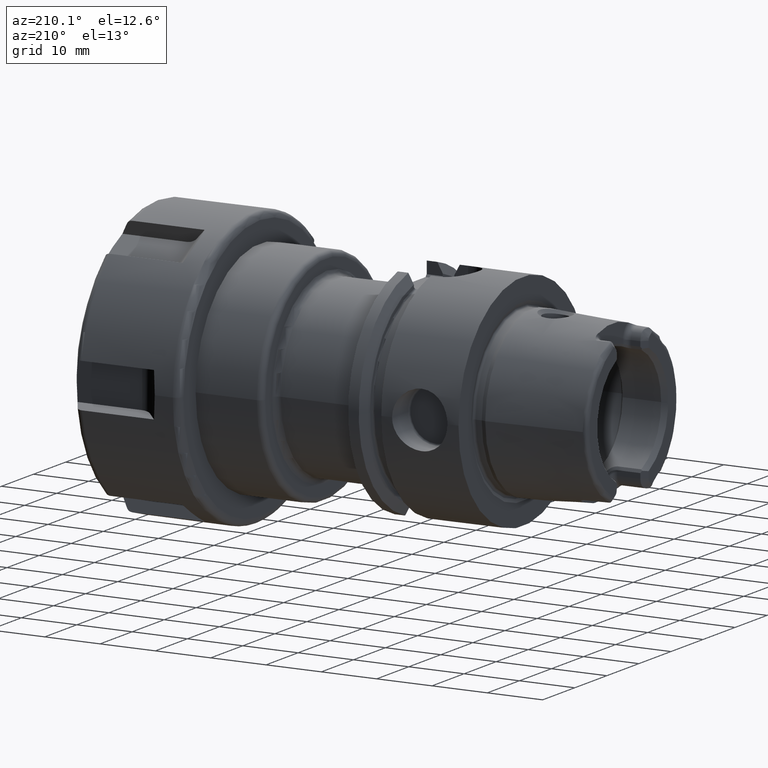
[diagram: clean part render]
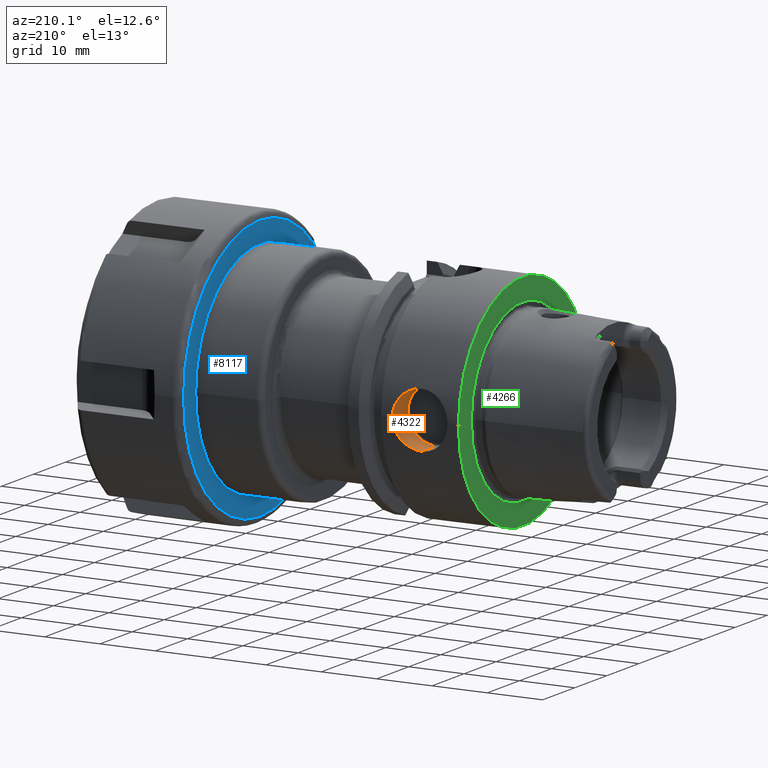
[diagram: same view with three faces highlighted in distinct colors, each labeled with its STEP entity id]
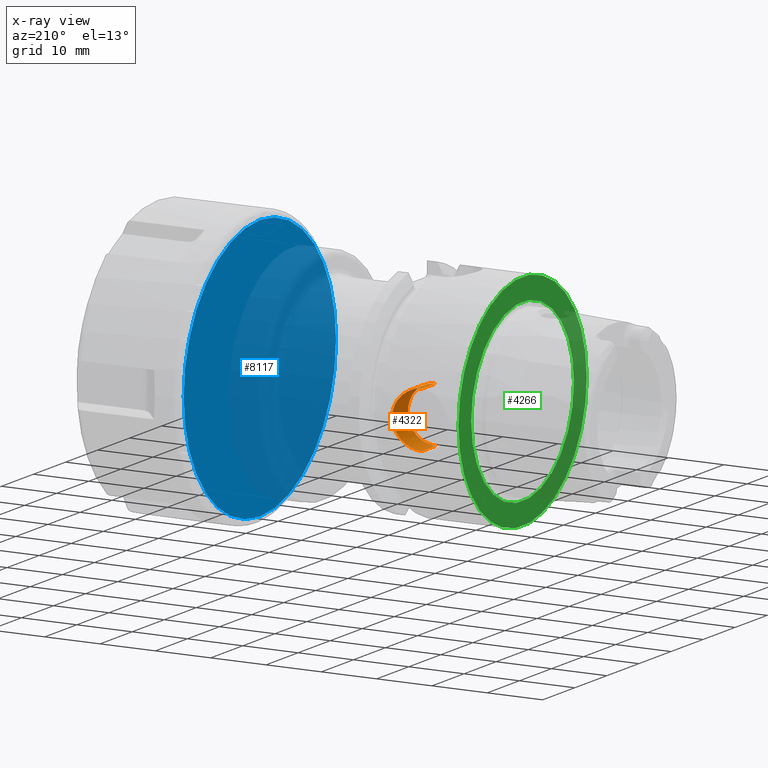
[diagram: x-ray of the same camera — body ghosted, the three highlighted faces saturated]
A machine part, auxiliary view with three faces highlighted in distinct colors.
The next image is the same camera in x-ray (body ghosted, the three faces saturated) — at least one of them is partly hidden behind the body in this view.
Their STEP definitions:

[orange] entity #4322 — the highlighted cylindrical surface (edge-blend (fillet) strip) has radius 5 mm, axis along (0, 1, 0).
#868=CARTESIAN_POINT('',(1.2E1,2.E1,0.E0));
#869=CARTESIAN_POINT('',(1.2E1,2.E1,1.388364920824E-1));
#870=CARTESIAN_POINT('',(1.198852136236E1,1.999712548747E1,4.163534209624E-1));
#871=CARTESIAN_POINT('',(1.193575387490E1,1.998399805695E1,8.353836532792E-1));
#872=CARTESIAN_POINT('',(1.184807385497E1,1.996247590752E1,1.246772777118E0));
#873=CARTESIAN_POINT('',(1.172808406661E1,1.993361847563E1,1.643522431216E0));
#874=CARTESIAN_POINT('',(1.157779204334E1,1.989842510861E1,2.025268619863E0));
#875=CARTESIAN_POINT('',(1.138689605318E1,1.985523262154E1,2.412968215661E0));
#876=CARTESIAN_POINT('',(1.114061319227E1,1.980202032785E1,2.817609232830E0));
#877=CARTESIAN_POINT('',(1.081673847603E1,1.973634549447E1,3.247067969082E0));
#878=CARTESIAN_POINT('',(1.039181339644E1,1.965788368631E1,3.692535471258E0));
#879=CARTESIAN_POINT('',(9.863422884363E0,1.957260395466E1,4.119686676293E0));
#880=CARTESIAN_POINT('',(9.220127558389E0,1.948779295543E1,4.501864919923E0));
#881=CARTESIAN_POINT('',(8.499148679360E0,1.941800125601E1,4.791634903769E0));
#882=CARTESIAN_POINT('',(7.732800482805E0,1.937386221195E1,4.965596973568E0));
#883=CARTESIAN_POINT('',(7.243547559799E0,1.936491673104E1,5.E0));
#884=CARTESIAN_POINT('',(7.E0,1.936491673104E1,5.E0));
#977=DIRECTION('',(0.E0,-1.E0,0.E0));
#978=VECTOR('',#977,4.3E0);
#979=CARTESIAN_POINT('',(7.E0,1.936491673104E1,5.E0));
#980=LINE('',#979,#978);
#981=DIRECTION('',(0.E0,-1.E0,0.E0));
#982=VECTOR('',#981,4.3E0);
#983=CARTESIAN_POINT('',(7.E0,1.936491673104E1,-5.E0));
#984=LINE('',#983,#982);
#1039=CARTESIAN_POINT('',(7.E0,1.936491673104E1,-5.E0));
#1040=CARTESIAN_POINT('',(7.277269205720E0,1.936491673104E1,-5.E0));
#1041=CARTESIAN_POINT('',(7.817065062970E0,1.937682316948E1,-4.954174733782E0));
#1042=CARTESIAN_POINT('',(8.583101313273E0,1.942478940204E1,-4.764319170226E0));
#1043=CARTESIAN_POINT('',(9.303947795154E0,1.949746008253E1,-4.460164029726E0));
#1044=CARTESIAN_POINT('',(9.964543066702E0,1.958721708415E1,-4.051503127372E0));
#1045=CARTESIAN_POINT('',(1.056239562523E1,1.968731976873E1,-3.537987227676E0));
#1046=CARTESIAN_POINT('',(1.107349740424E1,1.978701078087E1,-2.935069864087E0));
#1047=CARTESIAN_POINT('',(1.148330640224E1,1.987613861185E1,-2.259675346177E0));
#1048=CARTESIAN_POINT('',(1.178037844883E1,1.994579806335E1,-1.533678372167E0));
#1049=CARTESIAN_POINT('',(1.196005250753E1,1.998995644002E1,
-7.733833777005E-1));
#1050=CARTESIAN_POINT('',(1.2E1,2.E1,-2.596655130622E-1));
#1051=CARTESIAN_POINT('',(1.2E1,2.E1,0.E0));
#2060=CARTESIAN_POINT('',(7.E0,1.506491673104E1,0.E0));
#2061=DIRECTION('',(0.E0,1.E0,0.E0));
#2062=DIRECTION('',(0.E0,0.E0,1.E0));
#2063=AXIS2_PLACEMENT_3D('',#2060,#2061,#2062);
#3225=CARTESIAN_POINT('',(7.E0,1.506491673104E1,5.E0));
#3227=VERTEX_POINT('',#3225);
#3229=CARTESIAN_POINT('',(7.E0,1.506491673104E1,-5.E0));
#3231=VERTEX_POINT('',#3229);
#3233=CARTESIAN_POINT('',(7.E0,1.936491673104E1,5.E0));
#3234=VERTEX_POINT('',#3233);
#3235=CARTESIAN_POINT('',(7.E0,1.936491673104E1,-5.E0));
#3236=VERTEX_POINT('',#3235);
#3237=VERTEX_POINT('',#868);
#4306=CARTESIAN_POINT('',(7.E0,1.436491673104E1,0.E0));
#4307=DIRECTION('',(0.E0,1.E0,0.E0));
#4308=DIRECTION('',(0.E0,0.E0,-1.E0));
#4309=AXIS2_PLACEMENT_3D('',#4306,#4307,#4308);
#4310=CYLINDRICAL_SURFACE('',#4309,5.E0);
#4312=ORIENTED_EDGE('',*,*,#4311,.T.);
#4314=ORIENTED_EDGE('',*,*,#4313,.T.);
#4316=ORIENTED_EDGE('',*,*,#4315,.F.);
#4318=ORIENTED_EDGE('',*,*,#4317,.T.);
#4319=ORIENTED_EDGE('',*,*,#4272,.T.);
#4320=EDGE_LOOP('',(#4312,#4314,#4316,#4318,#4319));
#4321=FACE_OUTER_BOUND('',#4320,.F.);
#4322=ADVANCED_FACE('',(#4321),#4310,.F.);
#885=B_SPLINE_CURVE_WITH_KNOTS('',3,(#868,#869,#870,#871,#872,#873,#874,#875,
#876,#877,#878,#879,#880,#881,#882,#883,#884),.UNSPECIFIED.,.F.,.F.,(4,1,1,1,1,
1,1,1,1,1,1,1,1,1,4),(0.E0,7.142857142857E-2,1.428571428571E-1,
2.142857142857E-1,2.857142857143E-1,3.571428571429E-1,4.285714285714E-1,5.E-1,
5.714285714286E-1,6.428571428571E-1,7.142857142857E-1,7.857142857143E-1,
8.571428571429E-1,9.285714285714E-1,1.E0),.UNSPECIFIED.);
#1052=B_SPLINE_CURVE_WITH_KNOTS('',3,(#1039,#1040,#1041,#1042,#1043,#1044,#1045,
#1046,#1047,#1048,#1049,#1050,#1051),.UNSPECIFIED.,.F.,.F.,(4,1,1,1,1,1,1,1,1,1,
4),(0.E0,1.E-1,2.E-1,3.E-1,4.E-1,5.E-1,6.E-1,7.E-1,8.E-1,9.E-1,1.E0),
.UNSPECIFIED.);
#2064=CIRCLE('',#2063,5.E0);
#4272=EDGE_CURVE('',#3237,#3234,#885,.T.);
#4311=EDGE_CURVE('',#3234,#3227,#980,.T.);
#4313=EDGE_CURVE('',#3227,#3231,#2064,.T.);
#4315=EDGE_CURVE('',#3236,#3231,#984,.T.);
#4317=EDGE_CURVE('',#3236,#3237,#1052,.T.);

[blue] entity #8117 — the highlighted planar face has unit normal (1, 0, 0).
#7410=CARTESIAN_POINT('',(0.E0,0.E0,0.E0));
#7411=DIRECTION('',(-1.E0,0.E0,0.E0));
#7412=DIRECTION('',(0.E0,1.E0,0.E0));
#7413=AXIS2_PLACEMENT_3D('',#7410,#7411,#7412);
#7415=CARTESIAN_POINT('',(0.E0,0.E0,0.E0));
#7416=DIRECTION('',(-1.E0,0.E0,0.E0));
#7417=DIRECTION('',(0.E0,-1.E0,0.E0));
#7418=AXIS2_PLACEMENT_3D('',#7415,#7416,#7417);
#7559=CARTESIAN_POINT('',(0.E0,2.375E1,0.E0));
#7560=CARTESIAN_POINT('',(0.E0,-2.375E1,0.E0));
#7561=VERTEX_POINT('',#7559);
#7562=VERTEX_POINT('',#7560);
#8107=CARTESIAN_POINT('',(0.E0,0.E0,0.E0));
#8108=DIRECTION('',(1.E0,0.E0,0.E0));
#8109=DIRECTION('',(0.E0,-1.E0,0.E0));
#8110=AXIS2_PLACEMENT_3D('',#8107,#8108,#8109);
#8111=PLANE('',#8110);
#8113=ORIENTED_EDGE('',*,*,#8112,.F.);
#8114=ORIENTED_EDGE('',*,*,#8097,.F.);
#8115=EDGE_LOOP('',(#8113,#8114));
#8116=FACE_OUTER_BOUND('',#8115,.F.);
#8117=ADVANCED_FACE('',(#8116),#8111,.F.);
#7414=CIRCLE('',#7413,2.375E1);
#7419=CIRCLE('',#7418,2.375E1);
#8097=EDGE_CURVE('',#7562,#7561,#7419,.T.);
#8112=EDGE_CURVE('',#7561,#7562,#7414,.T.);

[green] entity #4266 — the highlighted planar face has unit normal (1, 0, 0).
#848=CARTESIAN_POINT('',(-1.065814103640E-14,0.E0,0.E0));
#849=DIRECTION('',(1.E0,0.E0,0.E0));
#850=DIRECTION('',(0.E0,1.E0,0.E0));
#851=AXIS2_PLACEMENT_3D('',#848,#849,#850);
#853=CARTESIAN_POINT('',(-1.065814103640E-14,0.E0,0.E0));
#854=DIRECTION('',(-1.E0,0.E0,0.E0));
#855=DIRECTION('',(0.E0,1.E0,0.E0));
#856=AXIS2_PLACEMENT_3D('',#853,#854,#855);
#858=CARTESIAN_POINT('',(0.E0,0.E0,0.E0));
#859=DIRECTION('',(-1.E0,0.E0,0.E0));
#860=DIRECTION('',(0.E0,-1.E0,0.E0));
#861=AXIS2_PLACEMENT_3D('',#858,#859,#860);
#863=CARTESIAN_POINT('',(0.E0,0.E0,0.E0));
#864=DIRECTION('',(-1.E0,0.E0,0.E0));
#865=DIRECTION('',(0.E0,1.E0,0.E0));
#866=AXIS2_PLACEMENT_3D('',#863,#864,#865);
#2783=CARTESIAN_POINT('',(0.E0,-1.60037E1,0.E0));
#2784=VERTEX_POINT('',#2783);
#2785=CARTESIAN_POINT('',(0.E0,1.60037E1,0.E0));
#2786=VERTEX_POINT('',#2785);
#3133=CARTESIAN_POINT('',(-1.065814103640E-14,2.E1,0.E0));
#3134=CARTESIAN_POINT('',(-1.065814103640E-14,-2.E1,0.E0));
#3135=VERTEX_POINT('',#3133);
#3136=VERTEX_POINT('',#3134);
#4251=CARTESIAN_POINT('',(0.E0,0.E0,0.E0));
#4252=DIRECTION('',(1.E0,0.E0,0.E0));
#4253=DIRECTION('',(0.E0,-1.E0,0.E0));
#4254=AXIS2_PLACEMENT_3D('',#4251,#4252,#4253);
#4255=PLANE('',#4254);
#4257=ORIENTED_EDGE('',*,*,#4256,.T.);
#4259=ORIENTED_EDGE('',*,*,#4258,.F.);
#4260=EDGE_LOOP('',(#4257,#4259));
#4261=FACE_OUTER_BOUND('',#4260,.F.);
#4262=ORIENTED_EDGE('',*,*,#4246,.T.);
#4263=ORIENTED_EDGE('',*,*,#4230,.T.);
#4264=EDGE_LOOP('',(#4262,#4263));
#4265=FACE_BOUND('',#4264,.F.);
#4266=ADVANCED_FACE('',(#4261,#4265),#4255,.F.);
#852=CIRCLE('',#851,2.E1);
#857=CIRCLE('',#856,2.E1);
#862=CIRCLE('',#861,1.60037E1);
#867=CIRCLE('',#866,1.60037E1);
#4230=EDGE_CURVE('',#2786,#2784,#867,.T.);
#4246=EDGE_CURVE('',#2784,#2786,#862,.T.);
#4256=EDGE_CURVE('',#3135,#3136,#852,.T.);
#4258=EDGE_CURVE('',#3135,#3136,#857,.T.);